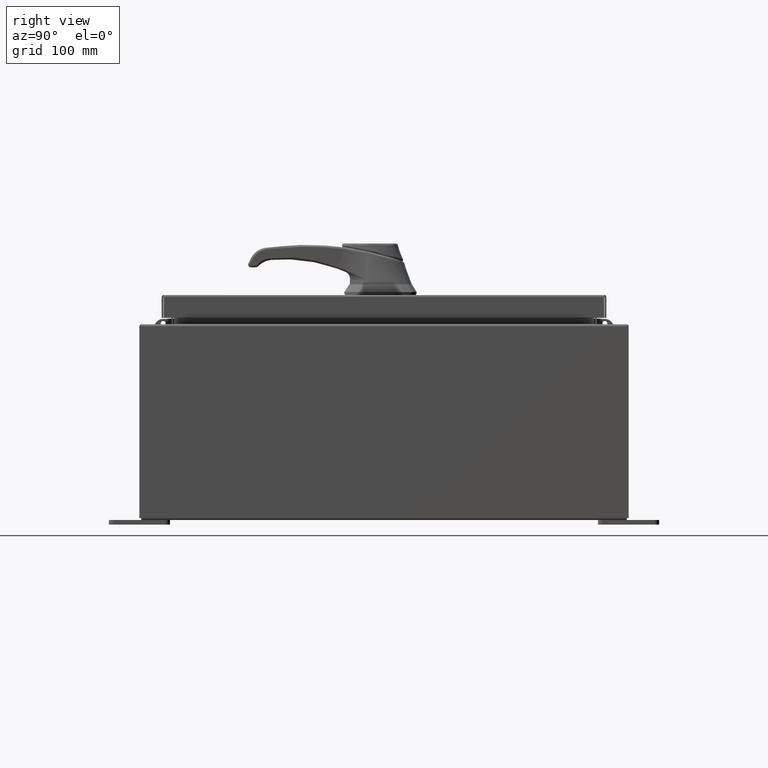
[diagram: clean part render]
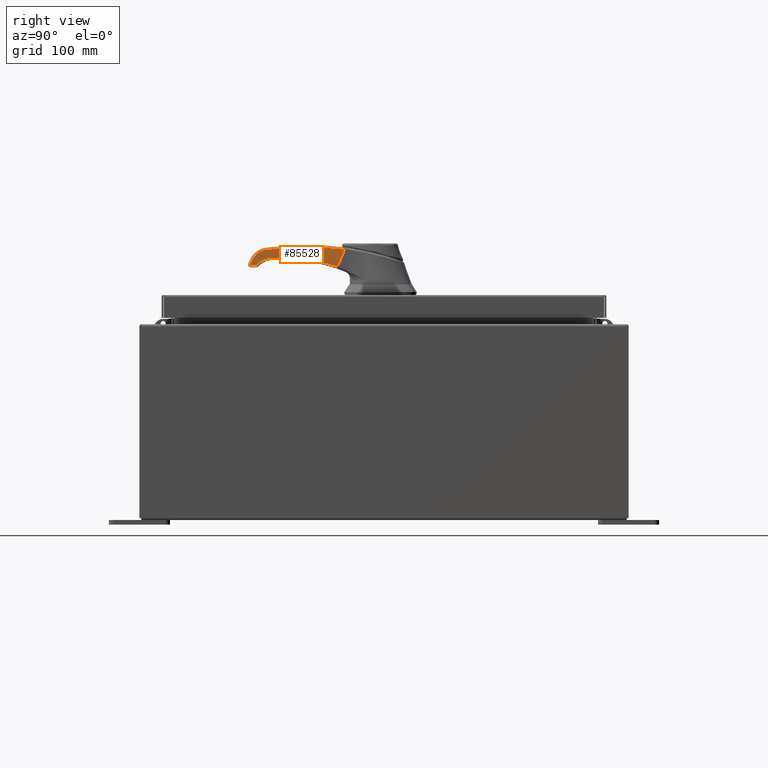
[diagram: same view with one face highlighted and labeled with its STEP entity id]
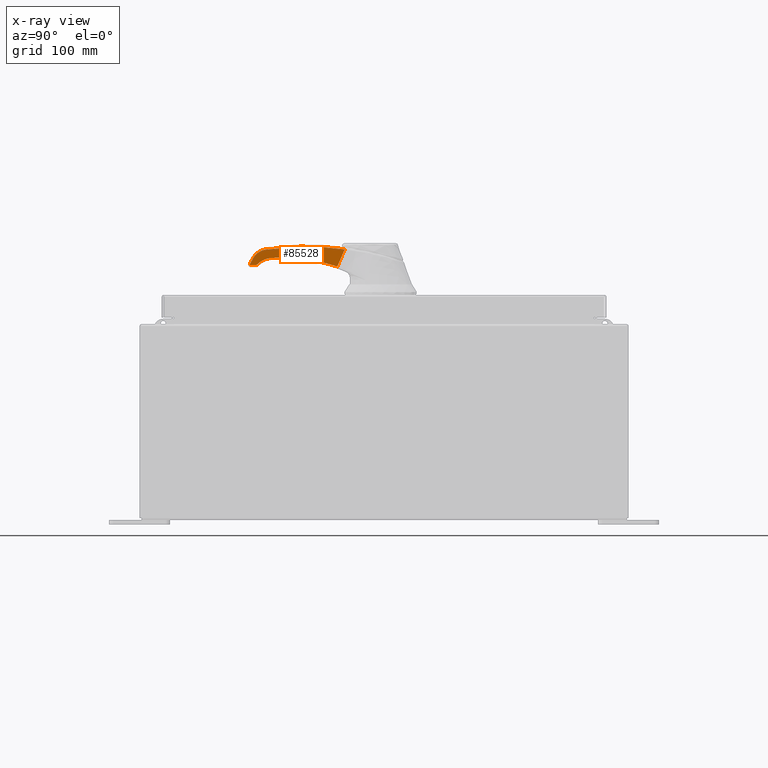
[diagram: x-ray of the same camera — body ghosted, the highlighted face saturated]
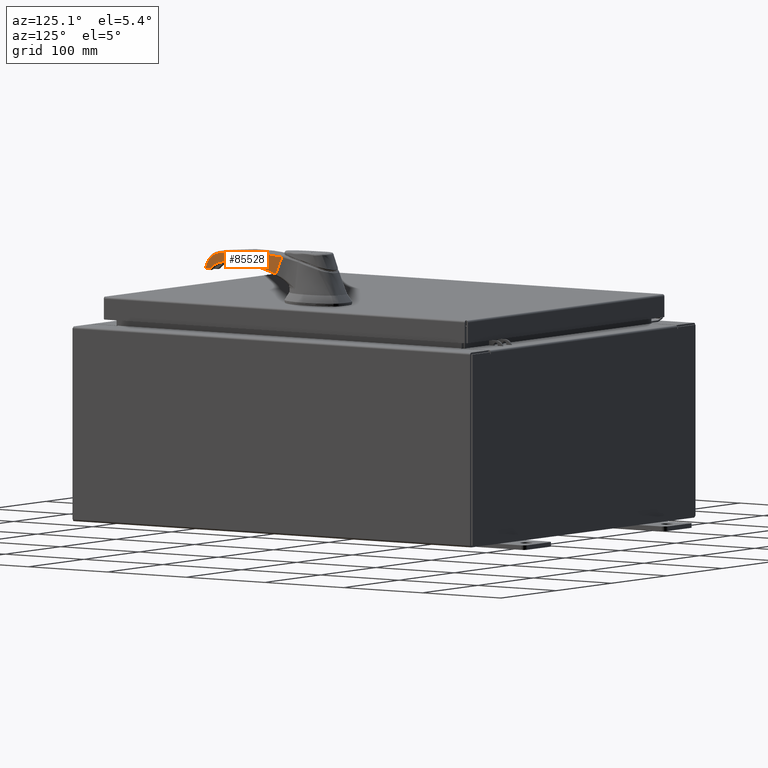
[diagram: same view with one face highlighted and labeled with its STEP entity id]
A machine part, right view. The second image highlights one B-rep face of the part: STEP entity #85528.
The next image is the same camera in x-ray: the body ghosted, the highlighted face saturated — about 0% of this face is hidden behind the body in this view.
A second angle (auxiliary view) of the same face is appended — the face is thin or edge-on in the first view.
In plain terms, the highlighted planar face has unit normal (-0.9997, 0.0262, 0).
Its self-contained STEP definition (entity closure, byte-faithful):
#677 = EDGE_CURVE ( 'NONE', #34817, #83212, #66325, .T. ) ;
#1943 = CARTESIAN_POINT ( 'NONE',  ( 5.400915495689577700, 0.3178645315180732000, 1.102362204724410200 ) ) ;
#2985 = CARTESIAN_POINT ( 'NONE',  ( 4.796223764405047200, 0.3336989417670217000, 1.746371229950547200 ) ) ;
#3092 = CARTESIAN_POINT ( 'NONE',  ( 1.562662322280712800, 0.4183727280796141800, 1.754100271247677200 ) ) ;
#3490 = CARTESIAN_POINT ( 'NONE',  ( 5.435132043173849700, 0.3169685396892819600, 1.141732283464568000 ) ) ;
#3506 = CARTESIAN_POINT ( 'NONE',  ( 4.631623080003707000, 0.3380091623789885900, 1.399778788881900900 ) ) ;
#3885 = CARTESIAN_POINT ( 'NONE',  ( 4.998712605902774400, 0.3283965848449281200, 1.260755330484069100 ) ) ;
#4946 = CARTESIAN_POINT ( 'NONE',  ( 1.743950840519501200, 0.4136255211596204800, 1.357333527408358900 ) ) ;
#5317 = CARTESIAN_POINT ( 'NONE',  ( 1.644809730878083800, 0.4162216224809722800, 1.580157026929564800 ) ) ;
#5575 = CARTESIAN_POINT ( 'NONE',  ( 5.350141432284226000, 0.3191940971601544000, 1.336677851867712900 ) ) ;
#6477 = VERTEX_POINT ( 'NONE', #2985 ) ;
#6550 = CARTESIAN_POINT ( 'NONE',  ( 4.796223764405047200, 0.3336989417670217000, 1.746371229950547200 ) ) ;
#7601 = DIRECTION ( 'NONE',  ( -0.02617694830786631100, -0.9996573249755574800, 0.0000000000000000000 ) ) ;
#8505 = CARTESIAN_POINT ( 'NONE',  ( 5.183227423342853700, 0.3235648943070906200, 1.105621196238433700 ) ) ;
#11176 = CARTESIAN_POINT ( 'NONE',  ( 4.260912669914371300, 0.3477165561024664900, 1.822155934299293700 ) ) ;
#11366 = CARTESIAN_POINT ( 'NONE',  ( 3.201373024673465300, 0.3754615781521817900, 1.376662373716619000 ) ) ;
#11858 = CARTESIAN_POINT ( 'NONE',  ( 5.432269163649482200, 0.3170435068279690600, 1.156470923341598600 ) ) ;
#11969 = CARTESIAN_POINT ( 'NONE',  ( 5.432269163649482200, 0.3170435068279690600, 1.156470923341598600 ) ) ;
#12339 = CARTESIAN_POINT ( 'NONE',  ( 5.089391488390961400, 0.3260220747401115200, 1.193731973241700000 ) ) ;
#13372 = ORIENTED_EDGE ( 'NONE', *, *, #14316, .F. ) ;
#13423 = CARTESIAN_POINT ( 'NONE',  ( 1.727588154324971100, 0.4140539931769714500, 1.395371746049572500 ) ) ;
#13765 = CARTESIAN_POINT ( 'NONE',  ( 1.644272026914849600, 0.4162357027547807800, 1.581319673572872300 ) ) ;
#14316 = EDGE_CURVE ( 'NONE', #90602, #96296, #68480, .T. ) ;
#17018 = CARTESIAN_POINT ( 'NONE',  ( 5.193534312655935500, 0.3232949989119160400, 1.102362204724409300 ) ) ;
#18552 = CARTESIAN_POINT ( 'NONE',  ( 5.395761964433690500, 0.3179994814833443400, 1.102362204724409700 ) ) ;
#18898 = CARTESIAN_POINT ( 'NONE',  ( 5.415589483345930200, 0.3174802796281969200, 1.107331244552982600 ) ) ;
#19893 = CARTESIAN_POINT ( 'NONE',  ( 4.118201828877361400, 0.3514535709929334000, 1.444841834036825000 ) ) ;
#20840 = CARTESIAN_POINT ( 'NONE',  ( 5.170139892717847000, 0.3239076033575712900, 1.114858622675531500 ) ) ;
#21144 = B_SPLINE_CURVE_WITH_KNOTS ( 'NONE', 3,
 ( #64227, #81164, #5575, #64630 ),
 .UNSPECIFIED., .F., .F.,
 ( 4, 4 ),
 ( 0.0000000000000000000, 1.000000000000000000 ),
 .UNSPECIFIED. ) ;
#21903 = CARTESIAN_POINT ( 'NONE',  ( 1.723669072284649100, 0.4141566179519026700, 1.404409365233900300 ) ) ;
#22276 = CARTESIAN_POINT ( 'NONE',  ( 1.623209112430039600, 0.4167872545814984600, 1.626849718999865400 ) ) ;
#23152 = CARTESIAN_POINT ( 'NONE',  ( 5.202277878165597600, 0.3230660405912450000, 1.541478272163007100 ) ) ;
#26435 = ORIENTED_EDGE ( 'NONE', *, *, #61776, .F. ) ;
#27356 = CARTESIAN_POINT ( 'NONE',  ( 5.423600814086704200, 0.3172704955497542300, 1.113893433811554500 ) ) ;
#28541 = EDGE_CURVE ( 'NONE', #83212, #31550, #104925, .T. ) ;
#28705 = CARTESIAN_POINT ( 'NONE',  ( 1.562662322280712800, 0.4183727280796141800, 1.754100271247677200 ) ) ;
#30420 = CARTESIAN_POINT ( 'NONE',  ( 1.709857820584053600, 0.4145182783057067000, 1.436171112129818800 ) ) ;
#30784 = CARTESIAN_POINT ( 'NONE',  ( 1.562662322280712800, 0.4183727280796141800, 1.754100271247677200 ) ) ;
#31550 = VERTEX_POINT ( 'NONE', #11858 ) ;
#31665 = CARTESIAN_POINT ( 'NONE',  ( 5.126141399689135600, 0.3250597444451832600, 1.610912536152378400 ) ) ;
#31993 = CARTESIAN_POINT ( 'NONE',  ( 5.297676707349643800, 0.3205679343324400200, 1.420544348434245500 ) ) ;
#34817 = VERTEX_POINT ( 'NONE', #55260 ) ;
#35063 = VERTEX_POINT ( 'NONE', #31993 ) ;
#35860 = CARTESIAN_POINT ( 'NONE',  ( 5.430163003345275500, 0.3170986585765072100, 1.121904764552327900 ) ) ;
#36995 = VECTOR ( 'NONE', #66166, 39.37007874015748100 ) ;
#37083 = CARTESIAN_POINT ( 'NONE',  ( 4.575459058248953600, 0.3394798690476682500, 1.404708311847427900 ) ) ;
#37434 = CARTESIAN_POINT ( 'NONE',  ( 4.741663103481488200, 0.3351276629547286800, 1.374629167336417500 ) ) ;
#38529 = CARTESIAN_POINT ( 'NONE',  ( 1.842632749135867200, 0.4110414444402953300, 1.114804430378746500 ) ) ;
#38831 = EDGE_CURVE ( 'NONE', #96296, #34817, #101663, .T. ) ;
#38865 = CARTESIAN_POINT ( 'NONE',  ( 1.667824470721046300, 0.4156189603085092000, 1.530038901860349500 ) ) ;
#39089 = ORIENTED_EDGE ( 'NONE', *, *, #677, .F. ) ;
#40125 = CARTESIAN_POINT ( 'NONE',  ( 5.039863501505275100, 0.3273190107201794900, 1.666972948010673900 ) ) ;
#40849 = PLANE ( 'NONE',  #51920 ) ;
#44343 = CARTESIAN_POINT ( 'NONE',  ( 5.434107345404883400, 0.3169953723446922200, 1.131427248647273400 ) ) ;
#45147 = CARTESIAN_POINT ( 'NONE',  ( 3.179710612358059900, 0.3760288283820721900, 1.862171209254076100 ) ) ;
#45929 = CARTESIAN_POINT ( 'NONE',  ( 4.848938346337686100, 0.3323185618589815600, 1.339510333343593800 ) ) ;
#47001 = CARTESIAN_POINT ( 'NONE',  ( 1.865198265729528700, 0.4104505455926055800, 1.054892244880486300 ) ) ;
#47388 = CARTESIAN_POINT ( 'NONE',  ( 1.650061589649088700, 0.4160840977191022600, 1.568781778993352000 ) ) ;
#47620 = B_SPLINE_CURVE_WITH_KNOTS ( 'NONE', 3,
 ( #47001, #38529, #89021, #55521, #4946, #63973, #13423, #72426, #21903, #80911, #30420, #89382, #38865, #97867, #47388, #106356, #55864, #5317, #64332, #13765, #72794, #22276, #81256, #30784 ),
 .UNSPECIFIED., .F., .F.,
 ( 4, 1, 1, 1, 1, 1, 2, 2, 1, 1, 1, 1, 1, 1, 1, 2, 2, 4 ),
 ( 0.0000000000000000000, 0.2499999999999746300, 0.3749999999999617500, 0.4374999999999555900, 0.4687499999999525400, 0.4843749999999510400, 0.4921874999999502100, 0.4999999999999494800, 0.6249999999999327200, 0.6874999999999245000, 0.7187499999999204000, 0.7343749999999181800, 0.7421874999999168400, 0.7460937499999166200, 0.7480468749999162900, 0.7490234374999158500, 0.7499999999999155100, 1.000000000000000000 ),
 .UNSPECIFIED. ) ;
#48625 = CARTESIAN_POINT ( 'NONE',  ( 4.945485464932538400, 0.3297903865837263900, 1.708333153319855800 ) ) ;
#48773 = EDGE_LOOP ( 'NONE', ( #87329, #86694, #107379, #26435, #70551, #71665, #39089, #60484, #13372, #100998 ) ) ;
#51920 = AXIS2_PLACEMENT_3D ( 'NONE', #58210, #7601, #66659 ) ;
#52502 = CARTESIAN_POINT ( 'NONE',  ( 5.406066999250983300, 0.3177296346498509300, 1.103386902493374200 ) ) ;
#52866 = CARTESIAN_POINT ( 'NONE',  ( 5.435132043173849700, 0.3169685396892819600, 1.141732283464568000 ) ) ;
#53475 = CARTESIAN_POINT ( 'NONE',  ( 1.865198265729528700, 0.4104505455926055800, 1.054892244880486300 ) ) ;
#53632 = CARTESIAN_POINT ( 'NONE',  ( 2.098329616508388900, 0.4043457863257935400, 1.827325071607532400 ) ) ;
#54077 = CARTESIAN_POINT ( 'NONE',  ( 5.435132043173849700, 0.3169685396892820100, 1.146767822269910000 ) ) ;
#54449 = CARTESIAN_POINT ( 'NONE',  ( 4.950299381391370300, 0.3296643297448948500, 1.290106581277679100 ) ) ;
#55130 = EDGE_CURVE ( 'NONE', #64768, #69885, #47620, .T. ) ;
#55260 = CARTESIAN_POINT ( 'NONE',  ( 5.395761964433690500, 0.3179994814833443400, 1.102362204724409700 ) ) ;
#55521 = CARTESIAN_POINT ( 'NONE',  ( 1.765521914500038000, 0.4130606627082033500, 1.306413550672592900 ) ) ;
#55864 = CARTESIAN_POINT ( 'NONE',  ( 1.645561960060808500, 0.4162019246665913900, 1.578529911083218300 ) ) ;
#56757 = CARTESIAN_POINT ( 'NONE',  ( 5.297676707349643800, 0.3205679343324400200, 1.420544348434245500 ) ) ;
#57119 = CARTESIAN_POINT ( 'NONE',  ( 4.847161550863279300, 0.3323650888859187600, 1.739159899704178600 ) ) ;
#58210 = CARTESIAN_POINT ( 'NONE',  ( 0.01201875559651574900, 0.4589777588985603500, 0.0000000000000000000 ) ) ;
#59091 = CARTESIAN_POINT ( 'NONE',  ( 5.170139892717847000, 0.3239076033575712900, 1.114858622675531500 ) ) ;
#60484 = ORIENTED_EDGE ( 'NONE', *, *, #38831, .F. ) ;
#61378 = CARTESIAN_POINT ( 'NONE',  ( 4.796223764405047200, 0.3336989417670217000, 1.746371229950547200 ) ) ;
#61640 = VERTEX_POINT ( 'NONE', #63767 ) ;
#61776 = EDGE_CURVE ( 'NONE', #35063, #6477, #77922, .T. ) ;
#61950 = CARTESIAN_POINT ( 'NONE',  ( 2.746134234436860200, 0.3873824254085659900, 1.317904248492761000 ) ) ;
#62530 = CARTESIAN_POINT ( 'NONE',  ( 5.434154275272665500, 0.3169941434428552600, 1.151801554516131800 ) ) ;
#62890 = CARTESIAN_POINT ( 'NONE',  ( 5.044052047146868400, 0.3272093297925198200, 1.227243651862884400 ) ) ;
#63767 = CARTESIAN_POINT ( 'NONE',  ( 4.575459058248953600, 0.3394798690476682500, 1.404708311847427900 ) ) ;
#63973 = CARTESIAN_POINT ( 'NONE',  ( 1.733059943124017900, 0.4139107093446365300, 1.382706793541607100 ) ) ;
#64227 = CARTESIAN_POINT ( 'NONE',  ( 5.432269163649482200, 0.3170435068279690600, 1.156470923341598600 ) ) ;
#64332 = CARTESIAN_POINT ( 'NONE',  ( 1.644487136552200000, 0.4162300699106882800, 1.580854585195164500 ) ) ;
#64630 = CARTESIAN_POINT ( 'NONE',  ( 5.297676707349643800, 0.3205679343324400200, 1.420544348434245500 ) ) ;
#64768 = VERTEX_POINT ( 'NONE', #89011 ) ;
#66166 = DIRECTION ( 'NONE',  ( 0.9996573249755573700, -0.02617694830786630700, 0.0000000000000000000 ) ) ;
#66325 = B_SPLINE_CURVE_WITH_KNOTS ( 'NONE', 3,
 ( #18552, #1943, #52502, #69410, #18898, #77874, #27356, #86372, #35860, #94822, #44343, #103330, #52866 ),
 .UNSPECIFIED., .F., .F.,
 ( 4, 3, 3, 3, 4 ),
 ( 0.0000000000000000000, 0.2500000000000002800, 0.5000000000000000000, 0.7499999999999996700, 1.000000000000000000 ),
 .UNSPECIFIED. ) ;
#66659 = DIRECTION ( 'NONE',  ( 0.9996573249755573700, -0.02617694830786630700, 0.0000000000000000000 ) ) ;
#67565 = CARTESIAN_POINT ( 'NONE',  ( 5.188159560683404300, 0.3234357417455224800, 1.103479018449303100 ) ) ;
#68480 = B_SPLINE_CURVE_WITH_KNOTS ( 'NONE', 3,
 ( #59091, #92600, #84126, #8505, #67565, #17018, #75973 ),
 .UNSPECIFIED., .F., .F.,
 ( 4, 3, 4 ),
 ( 0.0000000000000000000, 0.5000000000000002200, 1.000000000000000000 ),
 .UNSPECIFIED. ) ;
#69410 = CARTESIAN_POINT ( 'NONE',  ( 5.410828241298456300, 0.3176049571390239200, 1.105359073523178200 ) ) ;
#69867 = B_SPLINE_CURVE_WITH_KNOTS ( 'NONE', 3,
 ( #53475, #103949, #61950, #11366, #70403, #19893, #78844 ),
 .UNSPECIFIED., .F., .F.,
 ( 4, 3, 4 ),
 ( 0.0000000000000000000, 0.5000000000000000000, 1.000000000000000000 ),
 .UNSPECIFIED. ) ;
#69885 = VERTEX_POINT ( 'NONE', #28705 ) ;
#70403 = CARTESIAN_POINT ( 'NONE',  ( 3.656611814910071700, 0.3635407308957975300, 1.435420498940477100 ) ) ;
#70551 = ORIENTED_EDGE ( 'NONE', *, *, #105724, .F. ) ;
#71184 = CARTESIAN_POINT ( 'NONE',  ( 5.198911570732901700, 0.3231541904536554000, 1.102362204724409300 ) ) ;
#71391 = CARTESIAN_POINT ( 'NONE',  ( 5.131655454586693000, 0.3249153538361076500, 1.156061117236732500 ) ) ;
#71665 = ORIENTED_EDGE ( 'NONE', *, *, #28541, .F. ) ;
#72426 = CARTESIAN_POINT ( 'NONE',  ( 1.725237457675101100, 0.4141155483350781300, 1.400794937004701700 ) ) ;
#72794 = CARTESIAN_POINT ( 'NONE',  ( 1.644138283611094900, 0.4162392049464434000, 1.581608801553304700 ) ) ;
#73643 = CARTESIAN_POINT ( 'NONE',  ( 5.238341333922705600, 0.3221216857672757900, 1.504789192969850700 ) ) ;
#74924 = CARTESIAN_POINT ( 'NONE',  ( 0.01201875559651574900, 0.4589777588985603500, 1.102362204724409500 ) ) ;
#75973 = CARTESIAN_POINT ( 'NONE',  ( 5.198911570732901700, 0.3231541904536554000, 1.102362204724409300 ) ) ;
#76226 = FACE_OUTER_BOUND ( 'NONE', #48773, .T. ) ;
#76279 = EDGE_CURVE ( 'NONE', #6477, #69885, #87715, .T. ) ;
#77874 = CARTESIAN_POINT ( 'NONE',  ( 5.419956717188608100, 0.3173659195853182900, 1.110249336913458300 ) ) ;
#77922 = B_SPLINE_CURVE_WITH_KNOTS ( 'NONE', 3,
 ( #56757, #107251, #73643, #23152, #82161, #31665, #90626, #40125, #99115, #48625, #107617, #57119, #6550 ),
 .UNSPECIFIED., .F., .F.,
 ( 4, 3, 3, 3, 4 ),
 ( 0.0000000000000000000, 0.2500000000000000600, 0.4999999999999999400, 0.7500000000000001100, 1.000000000000000000 ),
 .UNSPECIFIED. ) ;
#78844 = CARTESIAN_POINT ( 'NONE',  ( 4.575459058248953600, 0.3394798690476682500, 1.404708311847427900 ) ) ;
#80911 = CARTESIAN_POINT ( 'NONE',  ( 1.722863867013035400, 0.4141777029939923100, 1.406262940646886900 ) ) ;
#81164 = CARTESIAN_POINT ( 'NONE',  ( 5.395235492905134000, 0.3180132676254993600, 1.248202291150026800 ) ) ;
#81256 = CARTESIAN_POINT ( 'NONE',  ( 1.596077613542665300, 0.4174977178834175500, 1.684288201835003200 ) ) ;
#82161 = CARTESIAN_POINT ( 'NONE',  ( 5.166214422408489600, 0.3240103954152142000, 1.578167351356163800 ) ) ;
#83212 = VERTEX_POINT ( 'NONE', #102537 ) ;
#84126 = CARTESIAN_POINT ( 'NONE',  ( 5.178295286002300400, 0.3236940468686587100, 1.107763374027564300 ) ) ;
#84859 = B_SPLINE_CURVE_WITH_KNOTS ( 'NONE', 3,
 ( #37083, #3506, #87959, #37434, #96424, #45929, #104916, #54449, #3885, #62890, #12339, #71391, #20840 ),
 .UNSPECIFIED., .F., .F.,
 ( 4, 3, 3, 3, 4 ),
 ( 0.0000000000000000000, 0.2500000000000000600, 0.5000000000000001100, 0.7500000000000001100, 1.000000000000000000 ),
 .UNSPECIFIED. ) ;
#85528 = ADVANCED_FACE ( 'NONE', ( #76226 ), #40849, .F. ) ;
#86372 = CARTESIAN_POINT ( 'NONE',  ( 5.427244910984801300, 0.3171750715141900500, 1.117537530709649800 ) ) ;
#86694 = ORIENTED_EDGE ( 'NONE', *, *, #55130, .T. ) ;
#87329 = ORIENTED_EDGE ( 'NONE', *, *, #103070, .F. ) ;
#87715 = B_SPLINE_CURVE_WITH_KNOTS ( 'NONE', 3,
 ( #61378, #11176, #95614, #45147, #104129, #53632, #3092 ),
 .UNSPECIFIED., .F., .F.,
 ( 4, 3, 4 ),
 ( 0.0000000000000000000, 0.5000000000000000000, 1.000000000000000000 ),
 .UNSPECIFIED. ) ;
#87959 = CARTESIAN_POINT ( 'NONE',  ( 4.687333780091353000, 0.3365503263559293500, 1.389696421774641700 ) ) ;
#89011 = CARTESIAN_POINT ( 'NONE',  ( 1.865198265729528700, 0.4104505455926055800, 1.054892244880486300 ) ) ;
#89021 = CARTESIAN_POINT ( 'NONE',  ( 1.807821179219385900, 0.4119530174798284300, 1.203879819323980600 ) ) ;
#89382 = CARTESIAN_POINT ( 'NONE',  ( 1.690921837139421700, 0.4150141344830228800, 1.479003086513330300 ) ) ;
#90602 = VERTEX_POINT ( 'NONE', #104647 ) ;
#90626 = CARTESIAN_POINT ( 'NONE',  ( 5.083002450597204500, 0.3261893775826813500, 1.638942742081526100 ) ) ;
#92089 = EDGE_CURVE ( 'NONE', #61640, #90602, #84859, .T. ) ;
#92600 = CARTESIAN_POINT ( 'NONE',  ( 5.173810360600048100, 0.3238114887734857600, 1.110928919130475000 ) ) ;
#94822 = CARTESIAN_POINT ( 'NONE',  ( 5.432135174375079400, 0.3170470154605997100, 1.126666006599800400 ) ) ;
#95614 = CARTESIAN_POINT ( 'NONE',  ( 3.720358019906724800, 0.3618714777714223700, 1.860878920996956500 ) ) ;
#96296 = VERTEX_POINT ( 'NONE', #71184 ) ;
#96424 = CARTESIAN_POINT ( 'NONE',  ( 4.795992426871623400, 0.3337049995535279500, 1.359561912898191700 ) ) ;
#97867 = CARTESIAN_POINT ( 'NONE',  ( 1.656024441078615400, 0.4159279549592399000, 1.555823104175422700 ) ) ;
#99115 = CARTESIAN_POINT ( 'NONE',  ( 4.993661853746122100, 0.3285288434447675700, 1.690286077820788400 ) ) ;
#100998 = ORIENTED_EDGE ( 'NONE', *, *, #92089, .F. ) ;
#101663 = LINE ( 'NONE', #74924, #36995 ) ;
#102537 = CARTESIAN_POINT ( 'NONE',  ( 5.435132043173849700, 0.3169685396892819600, 1.141732283464568000 ) ) ;
#103070 = EDGE_CURVE ( 'NONE', #64768, #61640, #69867, .T. ) ;
#103330 = CARTESIAN_POINT ( 'NONE',  ( 5.435132043173849700, 0.3169685396892820100, 1.136578752208679200 ) ) ;
#103949 = CARTESIAN_POINT ( 'NONE',  ( 2.297279569877135800, 0.3991360984506875900, 1.209813579828442000 ) ) ;
#104129 = CARTESIAN_POINT ( 'NONE',  ( 2.639063204809394500, 0.3901861789927220700, 1.863463497511195700 ) ) ;
#104647 = CARTESIAN_POINT ( 'NONE',  ( 5.170139892717847000, 0.3239076033575712900, 1.114858622675531500 ) ) ;
#104916 = CARTESIAN_POINT ( 'NONE',  ( 4.899618863864528600, 0.3309914458019381800, 1.314808457310636900 ) ) ;
#104925 = B_SPLINE_CURVE_WITH_KNOTS ( 'NONE', 3,
 ( #3490, #54077, #62530, #11969 ),
 .UNSPECIFIED., .F., .F.,
 ( 4, 4 ),
 ( 0.0000000000000000000, 1.000000000000000000 ),
 .UNSPECIFIED. ) ;
#105724 = EDGE_CURVE ( 'NONE', #31550, #35063, #21144, .T. ) ;
#106356 = CARTESIAN_POINT ( 'NONE',  ( 1.647064454782247700, 0.4161625804576576400, 1.575277759817413500 ) ) ;
#107251 = CARTESIAN_POINT ( 'NONE',  ( 5.270392524408691800, 0.3212823958070108500, 1.464158964498488300 ) ) ;
#107379 = ORIENTED_EDGE ( 'NONE', *, *, #76279, .F. ) ;
#107617 = CARTESIAN_POINT ( 'NONE',  ( 4.897309076118954600, 0.3310519297226852700, 1.726380228818923400 ) ) ;